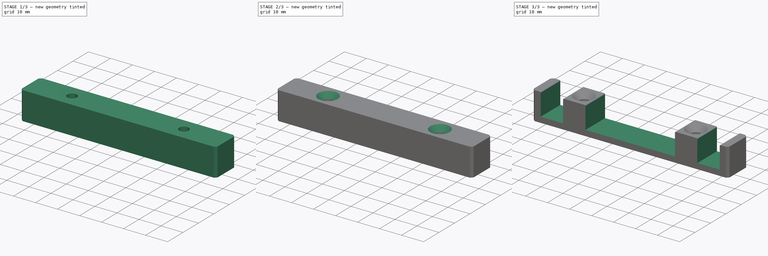
[diagram: build sequence overview — one tinted view per stage of 3, left to right]
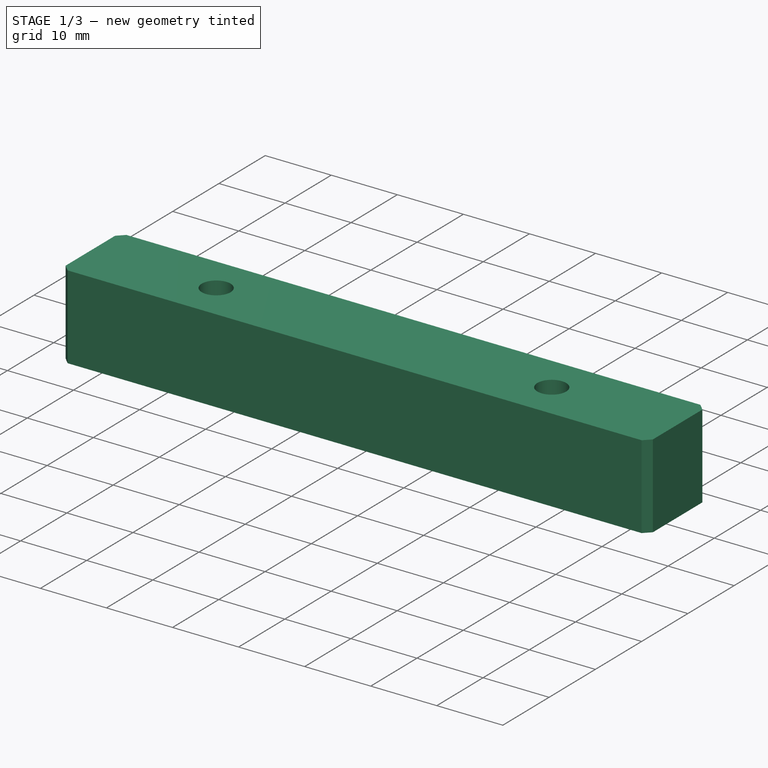
[diagram: stage 1 of 3 — iso view after this stage's code; geometry added in this stage tinted green]
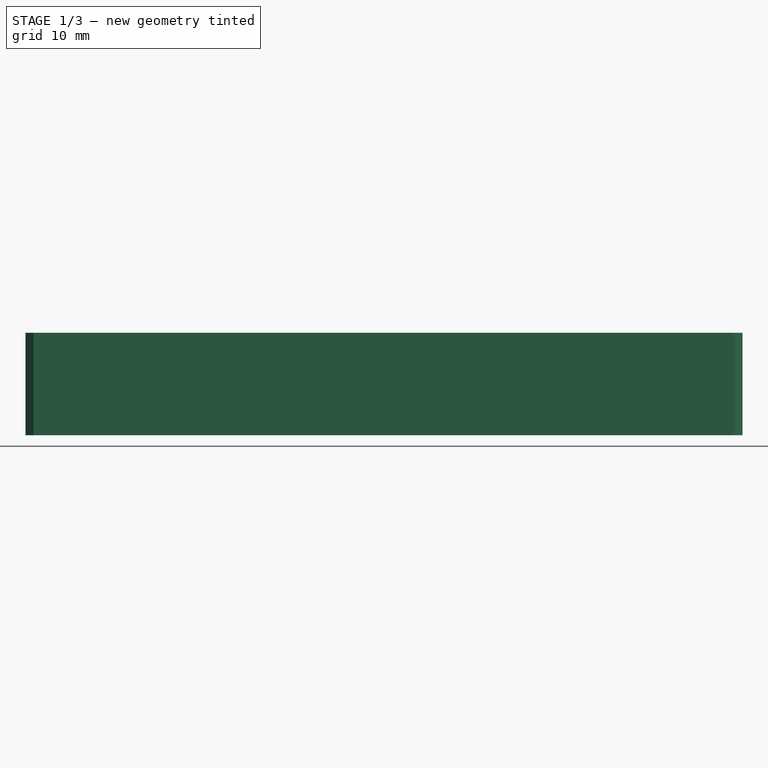
[diagram: stage 1 of 3 — front view after this stage's code; geometry added in this stage tinted green]
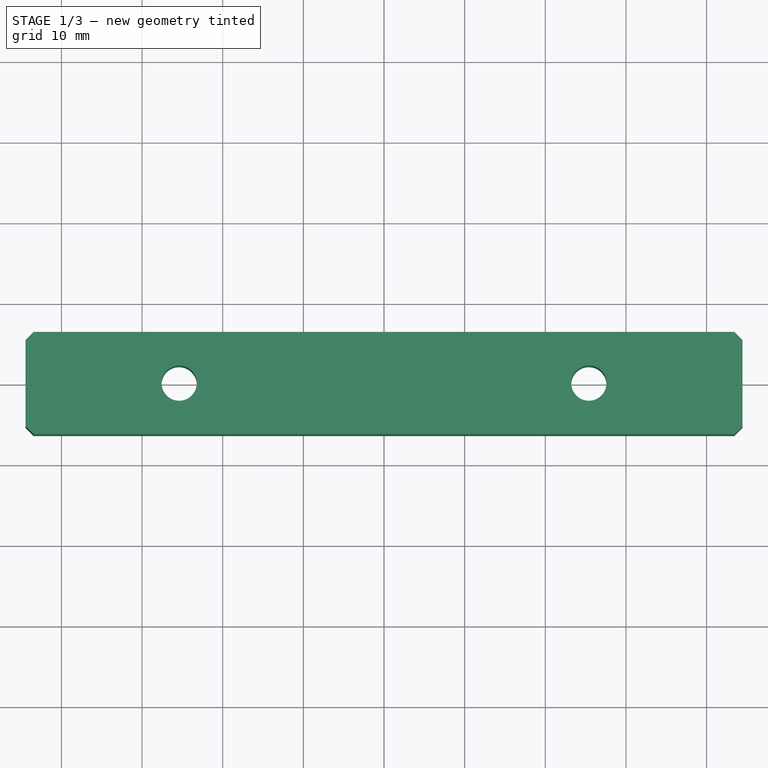
[diagram: stage 1 of 3 — top view after this stage's code; geometry added in this stage tinted green]
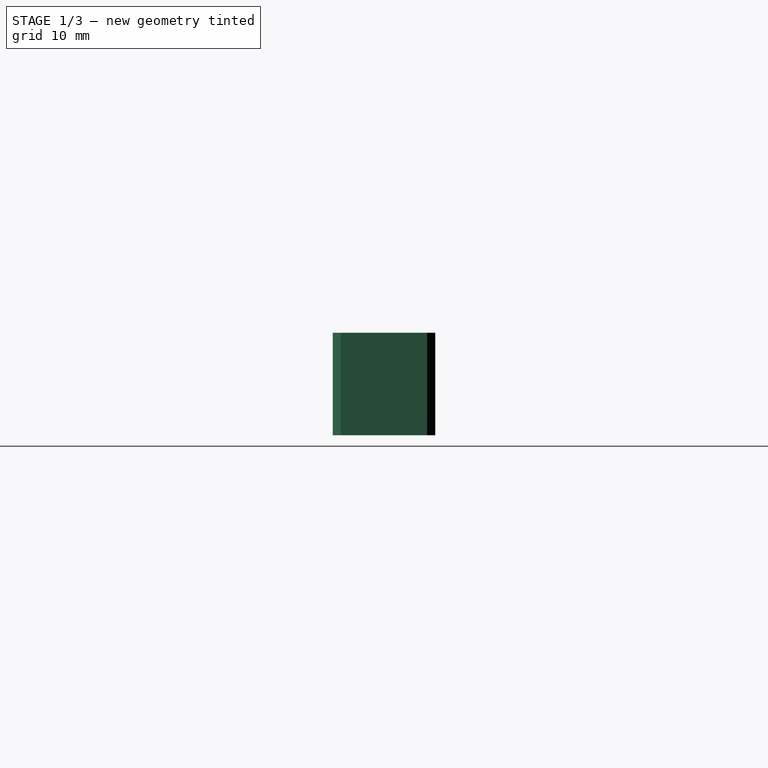
[diagram: stage 1 of 3 — right view after this stage's code; geometry added in this stage tinted green]
FCSTD DOCUMENT  (FreeCAD 0.21R31917 (Git))
Label: dell computer rails
License: All rights reserved
LicenseURL: http://en.wikipedia.org/wiki/All_rights_reserved
objects: PartDesign::Chamfer×3, Sketcher::SketchObject×2, PartDesign::Pad×1, PartDesign::Pocket×1, PartDesign::Body×1
note: 13 computed .brp shape members not serialized (recipe doc carries the construction recipe); baked Part::Feature solids carry a one-line shape summary decoded from their .brp

FEATURE [Sketcher::SketchObject] Sketch
  FullyConstrained = true
  MapMode = 5
  Support = -> [XY_Plane]
  sketch-geometry (9):
    g0: LineSegment StartX=-44.45 StartY=-6.35 StartZ=0 EndX=-44.45 EndY=6.35 EndZ=0
    g1: LineSegment StartX=-44.45 StartY=6.35 StartZ=0 EndX=44.45 EndY=6.35 EndZ=0
    g2: LineSegment StartX=44.45 StartY=6.35 StartZ=0 EndX=44.45 EndY=-6.35 EndZ=0
    g3: LineSegment StartX=44.45 StartY=-6.35 StartZ=0 EndX=-44.45 EndY=-6.35 EndZ=0
    g4: GeomPoint X=0 Y=0 Z=0
    g5: Circle CenterX=-25.4 CenterY=0 CenterZ=0 NormalX=0 NormalY=0 NormalZ=1 AngleXU=0 Radius=2.18281
    g6: Circle CenterX=25.4 CenterY=0 CenterZ=0 NormalX=0 NormalY=0 NormalZ=1 AngleXU=0 Radius=2.18281
    g7: LineSegment StartX=-25.4 StartY=0 StartZ=0 EndX=-44.45 EndY=0 EndZ=0
    g8: LineSegment StartX=25.4 StartY=0 StartZ=0 EndX=44.45 EndY=0 EndZ=0
  constraints (24):
    c: Coincident(g0,g1)
    c: Coincident(g1,g2)
    c: Coincident(g2,g3)
    c: Coincident(g3,g0)
    c: Horizontal(g1)
    c: Horizontal(g3)
    c: Vertical(g0)
    c: Vertical(g2)
    c: Symmetric(g1,g0,g4)
    c: Coincident(g4,g-1)
    c: DistanceY(g2,g1) = 12.7  'height'
    c: DistanceX(g0,g1) = 88.9  'width'
    c: PointOnObject(g5,g-1)
    c: PointOnObject(g6,g-1)
    c: Equal(g6,g5)
    c: Coincident(g7,g5)
    c: PointOnObject(g7,g0)
    c: Horizontal(g7)
    c: Coincident(g8,g6)
    c: PointOnObject(g8,g2)
    c: Horizontal(g8)
    c: Equal(g8,g7)
    c: DistanceX(g5,g6) = 50.8  'hole_sp'
    c: Diameter(g6) = 4.36562
FEATURE [PartDesign::Pad] Pad
  Direction = (0,0,1)
  Length = 12.7
  Length2 = 10
  Profile = -> Sketch
  ReferenceAxis = -> Sketch [N_Axis]
  Type = 0
FEATURE [PartDesign::Chamfer] Chamfer
  Angle = 45
  Base = -> Pad [Edge5,Edge8,Edge1,Edge2]
  BaseFeature = -> Pad
  ChamferType = 0
  FlipDirection = false
  Size = 1
  Size2 = 1
  SupportTransform = false
  UseAllEdges = false
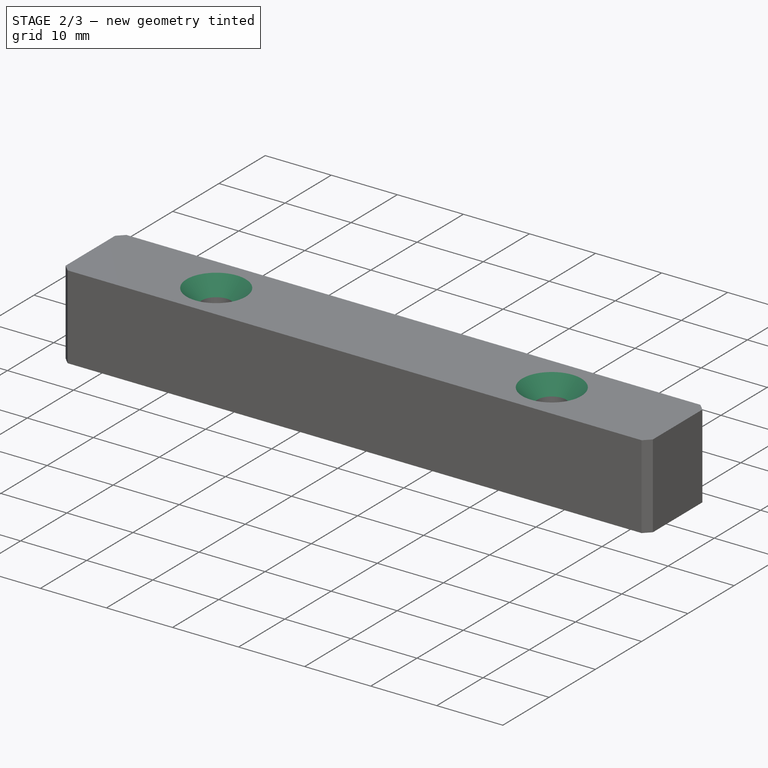
[diagram: stage 2 of 3 — iso view after this stage's code; geometry added in this stage tinted green]
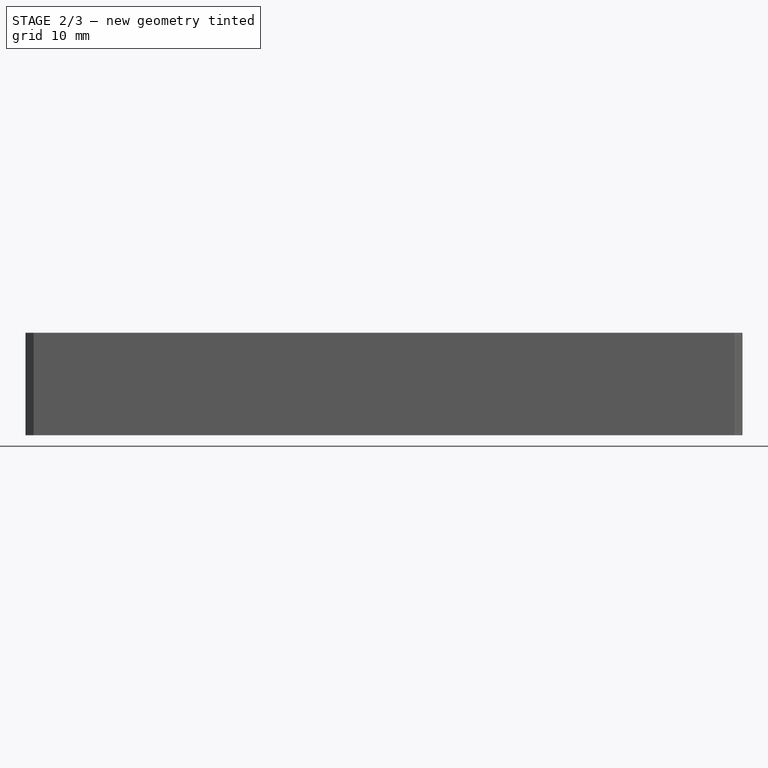
[diagram: stage 2 of 3 — front view after this stage's code; geometry added in this stage tinted green]
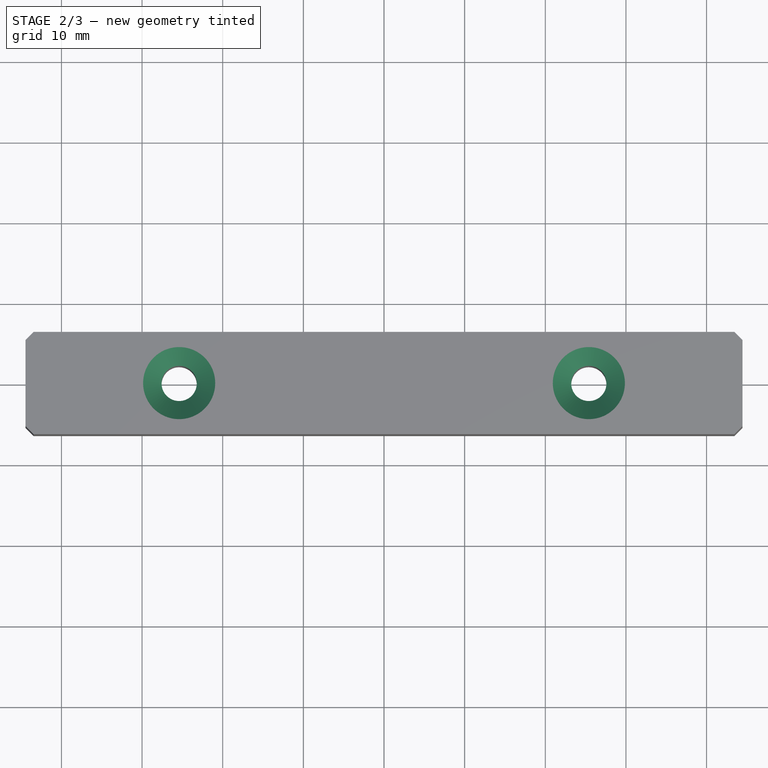
[diagram: stage 2 of 3 — top view after this stage's code; geometry added in this stage tinted green]
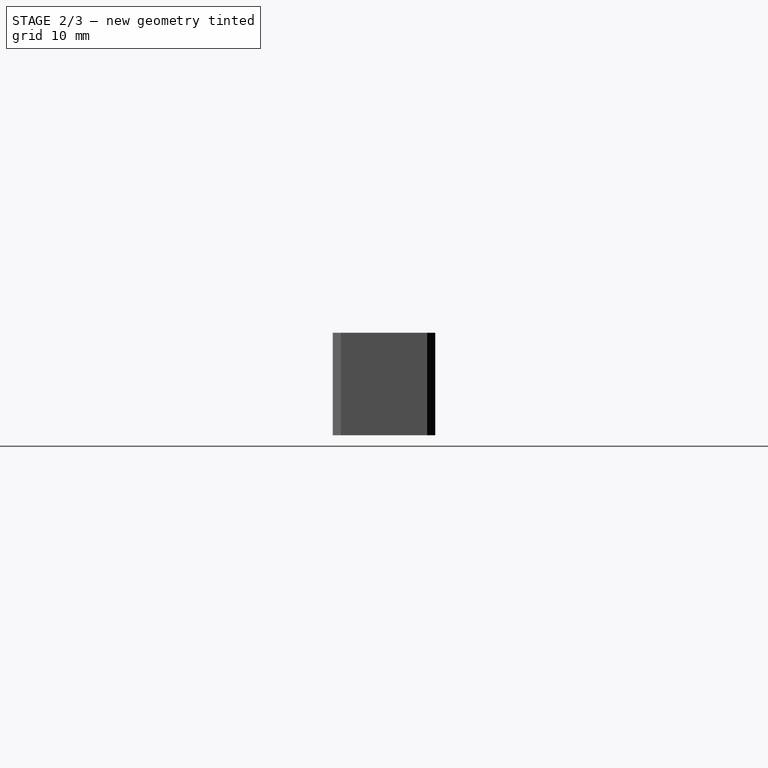
[diagram: stage 2 of 3 — right view after this stage's code; geometry added in this stage tinted green]
FEATURE [PartDesign::Chamfer] Chamfer001
  Angle = 45
  Base = -> Chamfer [Edge24,Edge23]
  BaseFeature = -> Chamfer
  ChamferType = 0
  FlipDirection = false
  Size = 2.286
  Size2 = 1
  SupportTransform = false
  UseAllEdges = false
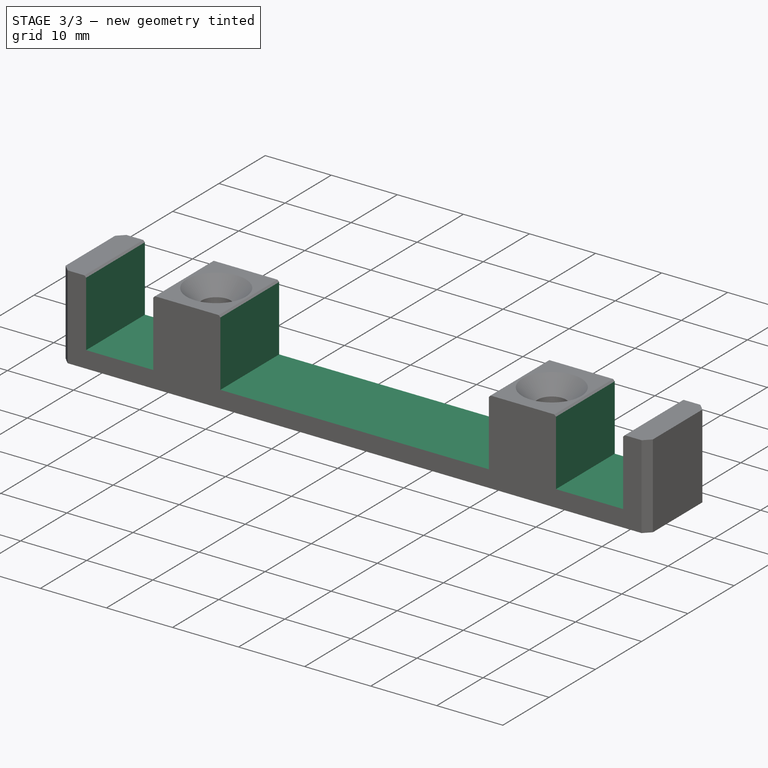
[diagram: stage 3 of 3 — iso view after this stage's code; geometry added in this stage tinted green]
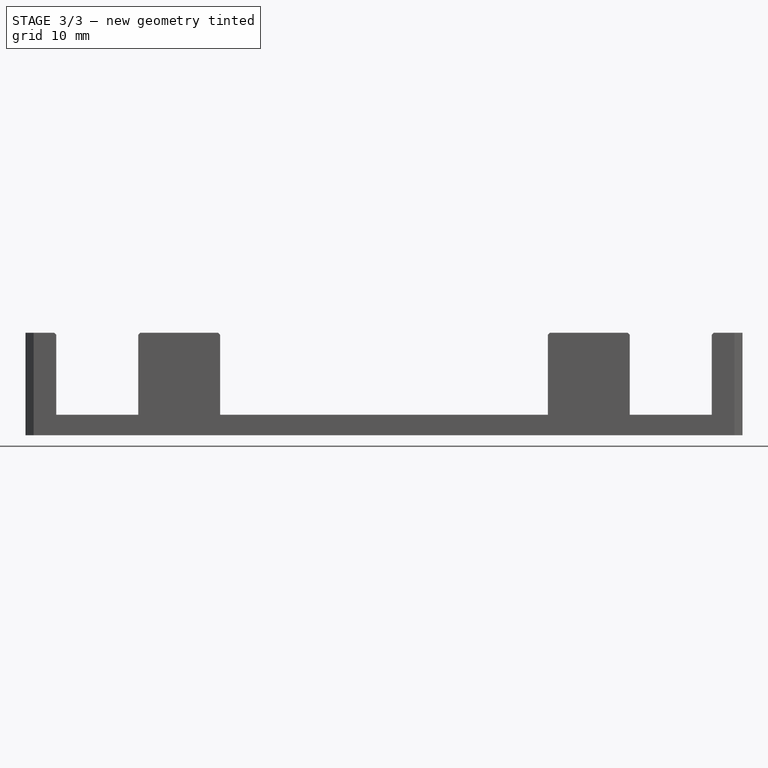
[diagram: stage 3 of 3 — front view after this stage's code; geometry added in this stage tinted green]
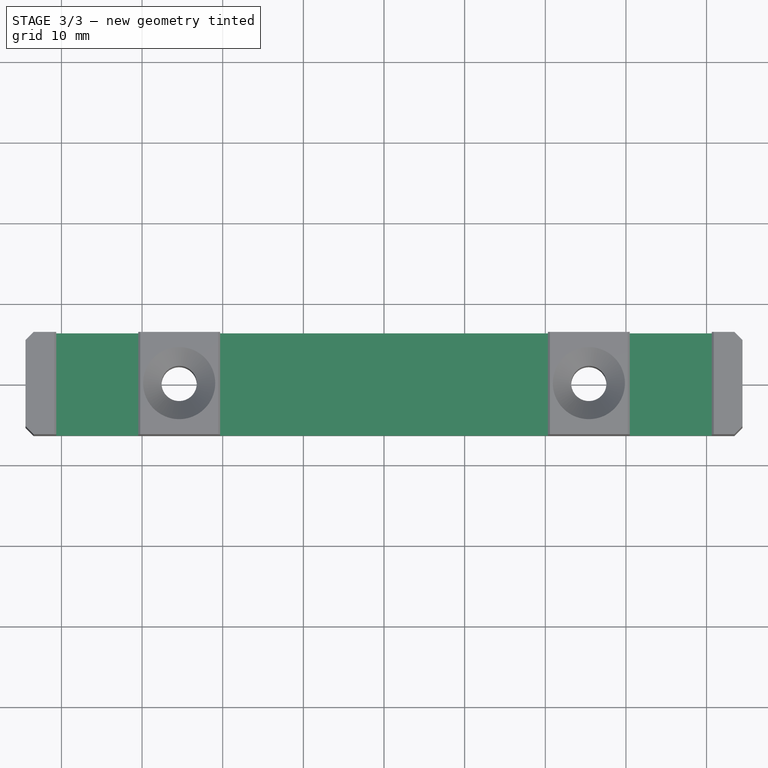
[diagram: stage 3 of 3 — top view after this stage's code; geometry added in this stage tinted green]
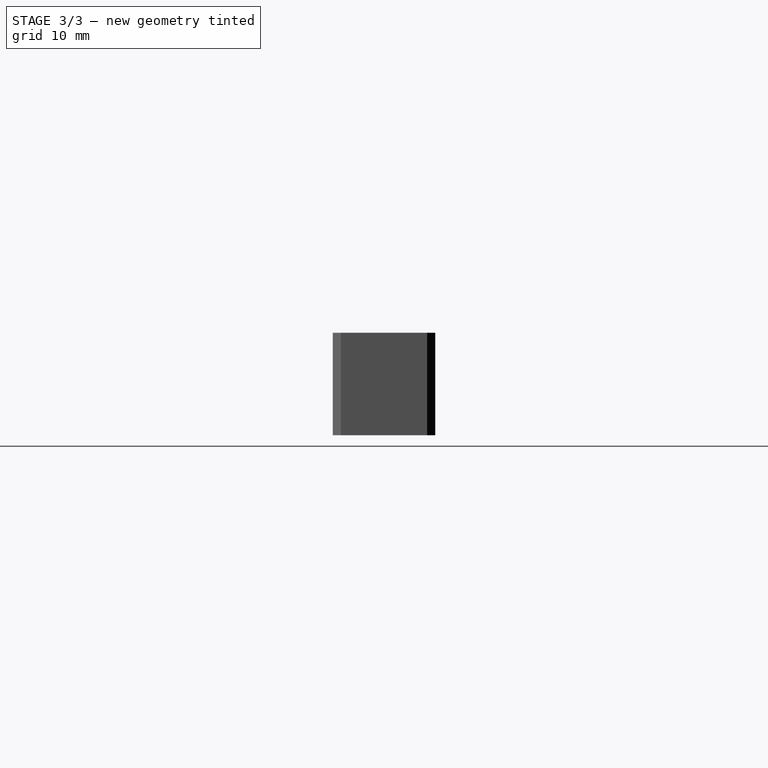
[diagram: stage 3 of 3 — right view after this stage's code; geometry added in this stage tinted green]
FEATURE [Sketcher::SketchObject] Sketch001
  AttachmentOffset = pos=(0,0,12.7) rot=(0,0,1;0rad)
  FullyConstrained = true
  MapMode = 5
  Placement = pos=(0,0,12.7) rot=(0,0,1;0rad)
  Support = -> [XY_Plane]
  expr: .AttachmentOffset.Base.z = Pad.Length
  expr: Constraints[44] = Sketch.Constraints.hole_sp
  expr: Constraints[48] = Sketch.Constraints.height
  sketch-geometry (19):
    g0: LineSegment StartX=-40.64 StartY=-6.35 StartZ=0 EndX=-40.64 EndY=6.35 EndZ=0
    g1: LineSegment StartX=-40.64 StartY=6.35 StartZ=0 EndX=-30.48 EndY=6.35 EndZ=0
    g2: LineSegment StartX=-30.48 StartY=6.35 StartZ=0 EndX=-30.48 EndY=-6.35 EndZ=0
    g3: LineSegment StartX=-30.48 StartY=-6.35 StartZ=0 EndX=-40.64 EndY=-6.35 EndZ=0
    g4: GeomPoint X=-35.56 Y=0 Z=0
    g5: LineSegment StartX=30.48 StartY=-6.35 StartZ=0 EndX=30.48 EndY=6.35 EndZ=0
    g6: LineSegment StartX=30.48 StartY=6.35 StartZ=0 EndX=40.64 EndY=6.35 EndZ=0
    g7: LineSegment StartX=40.64 StartY=6.35 StartZ=0 EndX=40.64 EndY=-6.35 EndZ=0
    g8: LineSegment StartX=40.64 StartY=-6.35 StartZ=0 EndX=30.48 EndY=-6.35 EndZ=0
    g9: GeomPoint X=35.56 Y=0 Z=0
    g10: LineSegment StartX=-20.32 StartY=-6.35 StartZ=0 EndX=-20.32 EndY=6.35 EndZ=0
    g11: LineSegment StartX=-20.32 StartY=6.35 StartZ=0 EndX=20.32 EndY=6.35 EndZ=0
    g12: LineSegment StartX=20.32 StartY=6.35 StartZ=0 EndX=20.32 EndY=-6.35 EndZ=0
    g13: LineSegment StartX=20.32 StartY=-6.35 StartZ=0 EndX=-20.32 EndY=-6.35 EndZ=0
    g14: GeomPoint X=0 Y=0 Z=0
    g15: LineSegment StartX=-35.56 StartY=0 StartZ=0 EndX=0 EndY=0 EndZ=0
    g16: LineSegment StartX=0 StartY=0 StartZ=0 EndX=35.56 EndY=0 EndZ=0
    g17: LineSegment StartX=0 StartY=-6.35 StartZ=0 EndX=-25.4 EndY=-6.35 EndZ=0
    g18: LineSegment StartX=0 StartY=-6.35 StartZ=0 EndX=25.4 EndY=-6.35 EndZ=0
  constraints (49):
    c: Coincident(g0,g1)
    c: Coincident(g1,g2)
    c: Coincident(g2,g3)
    c: Coincident(g3,g0)
    c: Horizontal(g1)
    c: Horizontal(g3)
    c: Vertical(g0)
    c: Vertical(g2)
    c: Symmetric(g1,g0,g4)
    c: PointOnObject(g4,g-1)
    c: Coincident(g5,g6)
    c: Coincident(g6,g7)
    c: Coincident(g7,g8)
    c: Coincident(g8,g5)
    c: Horizontal(g6)
    c: Horizontal(g8)
    c: Vertical(g5)
    c: Vertical(g7)
    c: Symmetric(g6,g5,g9)
    c: PointOnObject(g9,g-1)
    c: Coincident(g10,g11)
    c: Coincident(g11,g12)
    c: Coincident(g12,g13)
    c: Coincident(g13,g10)
    c: Horizontal(g11)
    c: Horizontal(g13)
    c: Vertical(g10)
    c: Vertical(g12)
    c: Symmetric(g11,g10,g14)
    c: Coincident(g14,g-1)
    c: Coincident(g15,g4)
    c: Coincident(g15,g14)
    c: Coincident(g16,g14)
    c: Coincident(g16,g9)
    c: DistanceX(g4,g14) = 35.56
    c: Equal(g16,g15)
    c: Equal(g2,g10)
    c: Equal(g10,g5)
    c: Equal(g6,g1)
    c: PointOnObject(g17,g-2)
    c: Horizontal(g17)
    c: Coincident(g18,g17)
    c: Horizontal(g18)
    c: Equal(g18,g17)
    c: DistanceX(g17,g18) = 50.8
    c: PointOnObject(g17,g13)
    c: DistanceX(g2,g17) = 5.08
    c: DistanceX(g17,g10) = 5.08
    c: DistanceY(g12,g11) = 12.7
FEATURE [PartDesign::Pocket] Pocket
  BaseFeature = -> Chamfer001
  Direction = (0,0,-1)
  Length = 10.16
  Length2 = 5
  Profile = -> Sketch001
  ReferenceAxis = -> Sketch001 [N_Axis]
  Type = 0
FEATURE [PartDesign::Chamfer] Chamfer002
  Angle = 45
  Base = -> Pocket [Edge4,Edge61,Edge60,Edge56,Edge55,Edge50]
  BaseFeature = -> Pocket
  ChamferType = 0
  FlipDirection = false
  Size = 0.254
  Size2 = 1
  SupportTransform = false
  UseAllEdges = false
FEATURE [PartDesign::Body] Body
  Group = -> [Sketch,Pad,Chamfer,Chamfer001,Sketch001,Pocket,Chamfer002]
  Origin = -> Origin
  Tip = -> Chamfer002
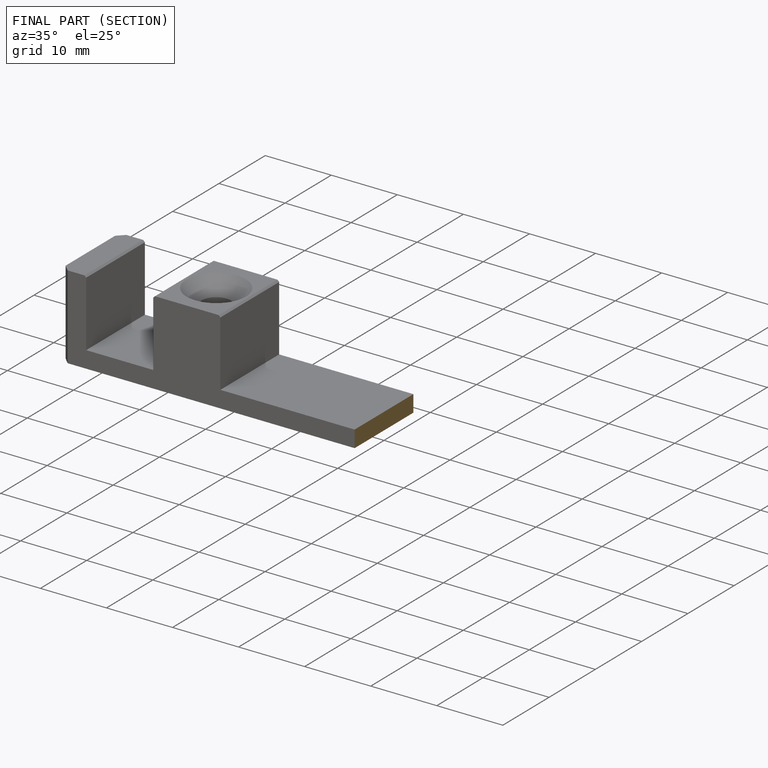
[diagram: finished part — half-section view (interior)]
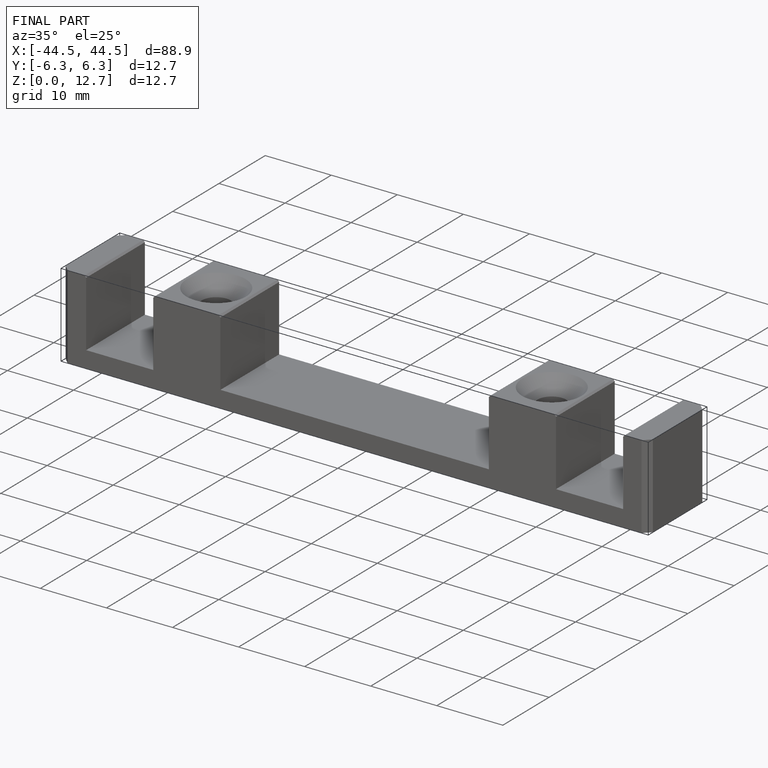
[diagram: finished part — iso view with bounding-box wireframe]
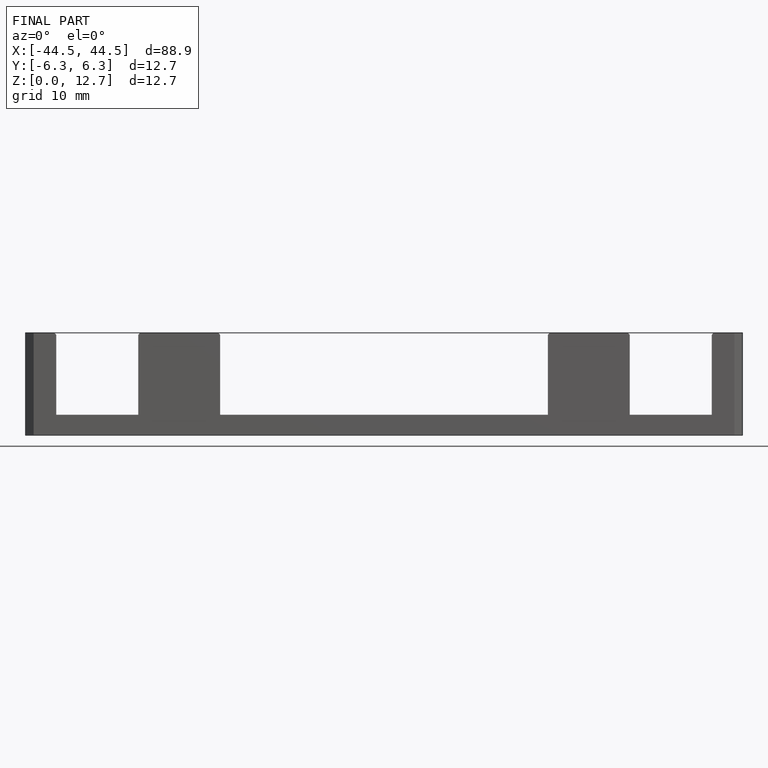
[diagram: finished part — front view with bounding-box wireframe]
